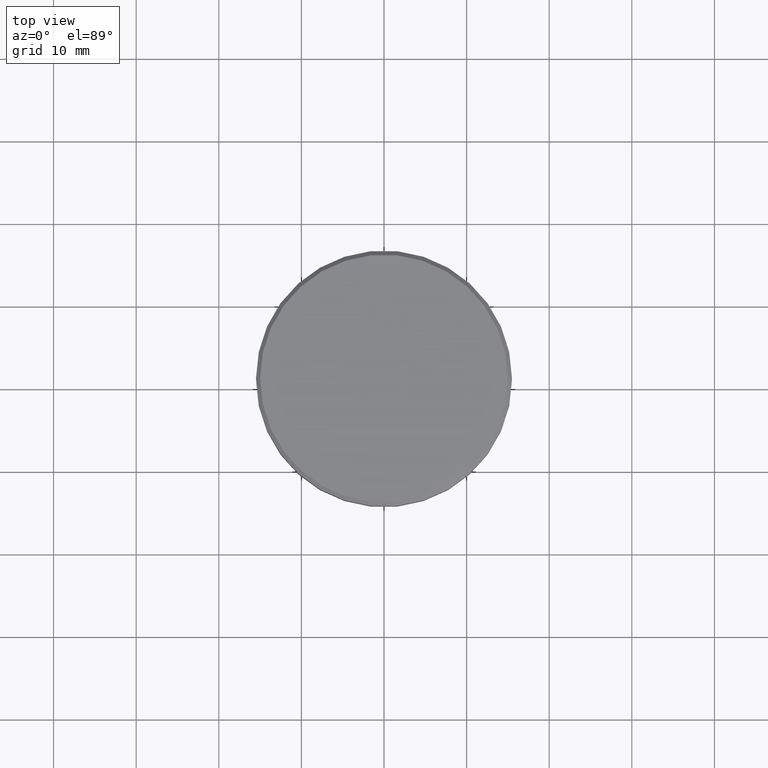
[diagram: clean part render]
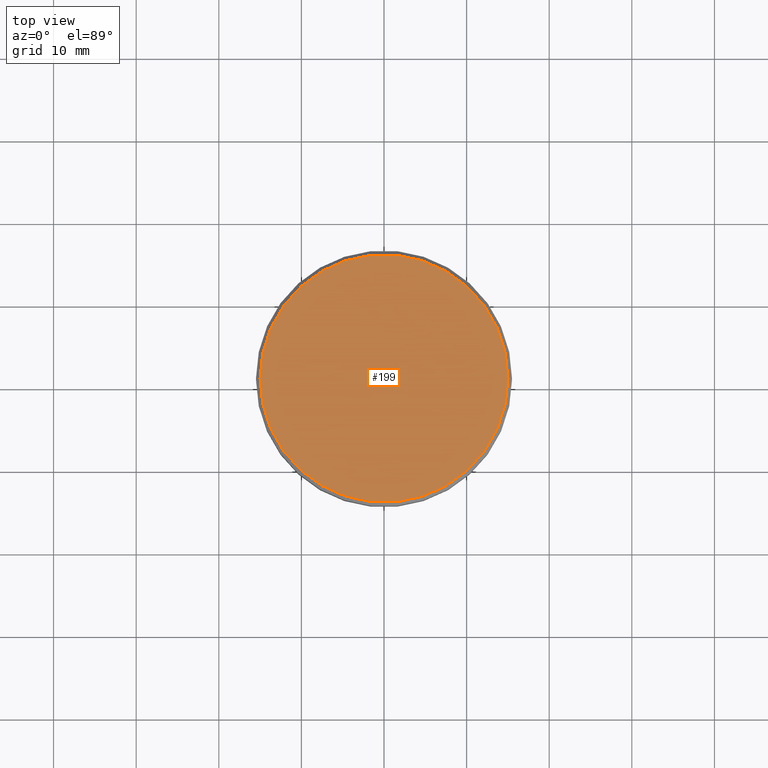
[diagram: same view with one face highlighted and labeled with its STEP entity id]
A machine part, top view. The second image highlights one B-rep face of the part: STEP entity #199.
In plain terms, the highlighted planar face has unit normal (0, -0, 1).
Its self-contained STEP definition (entity closure, byte-faithful):
#71 = CARTESIAN_POINT ( 'NONE',  ( 0.000000000000000000, 0.000000000000000000, 0.000000000000000000 ) ) ;
#116 = CARTESIAN_POINT ( 'NONE',  ( -15.00000000000000000, 0.000000000000000000, 0.000000000000000000 ) ) ;
#125 = CIRCLE ( 'NONE', #205, 15.00000000000000000 ) ;
#187 = DIRECTION ( 'NONE',  ( 1.000000000000000000, 0.000000000000000000, 0.000000000000000000 ) ) ;
#199 = ADVANCED_FACE ( 'NONE', ( #713 ), #896, .T. ) ;
#205 = AXIS2_PLACEMENT_3D ( 'NONE', #1066, #685, #321 ) ;
#247 = VERTEX_POINT ( 'NONE', #667 ) ;
#278 = VERTEX_POINT ( 'NONE', #116 ) ;
#286 = DIRECTION ( 'NONE',  ( 1.000000000000000000, 0.000000000000000000, 0.000000000000000000 ) ) ;
#321 = DIRECTION ( 'NONE',  ( 1.000000000000000000, 0.000000000000000000, 0.000000000000000000 ) ) ;
#428 = DIRECTION ( 'NONE',  ( 0.000000000000000000, -0.000000000000000000, 1.000000000000000000 ) ) ;
#489 = EDGE_CURVE ( 'NONE', #247, #278, #722, .T. ) ;
#574 = DIRECTION ( 'NONE',  ( -0.000000000000000000, -0.000000000000000000, 1.000000000000000000 ) ) ;
#667 = CARTESIAN_POINT ( 'NONE',  ( 15.00000000000000000, 1.867586368699713376E-15, 0.000000000000000000 ) ) ;
#685 = DIRECTION ( 'NONE',  ( -0.000000000000000000, -0.000000000000000000, 1.000000000000000000 ) ) ;
#713 = FACE_OUTER_BOUND ( 'NONE', #791, .T. ) ;
#722 = CIRCLE ( 'NONE', #795, 15.00000000000000000 ) ;
#791 = EDGE_LOOP ( 'NONE', ( #850, #1138 ) ) ;
#795 = AXIS2_PLACEMENT_3D ( 'NONE', #928, #574, #286 ) ;
#850 = ORIENTED_EDGE ( 'NONE', *, *, #907, .T. ) ;
#896 = PLANE ( 'NONE',  #1049 ) ;
#907 = EDGE_CURVE ( 'NONE', #278, #247, #125, .T. ) ;
#928 = CARTESIAN_POINT ( 'NONE',  ( 0.000000000000000000, 0.000000000000000000, 0.000000000000000000 ) ) ;
#1049 = AXIS2_PLACEMENT_3D ( 'NONE', #71, #428, #187 ) ;
#1066 = CARTESIAN_POINT ( 'NONE',  ( 0.000000000000000000, 0.000000000000000000, 0.000000000000000000 ) ) ;
#1138 = ORIENTED_EDGE ( 'NONE', *, *, #489, .T. ) ;